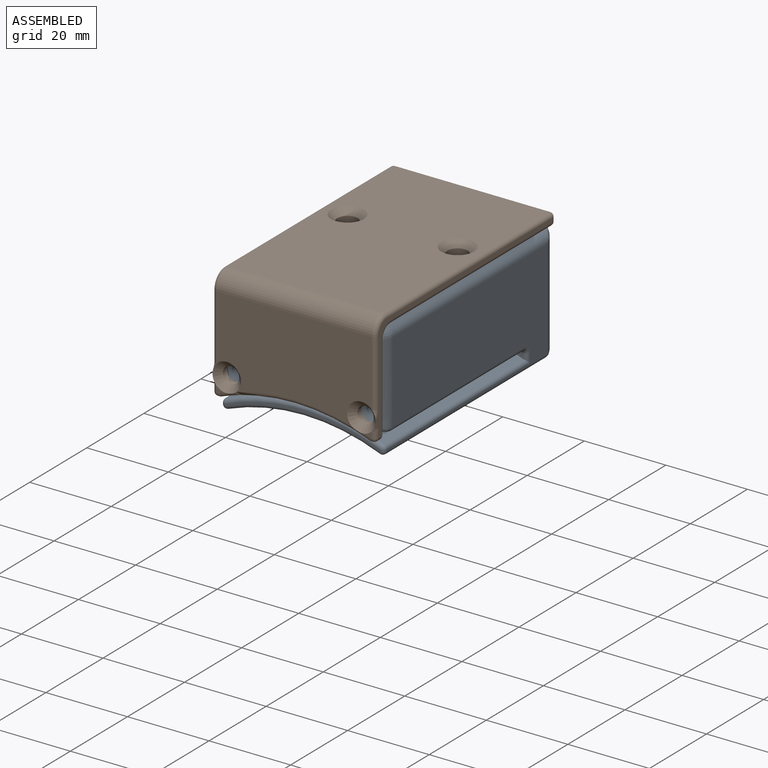
[diagram: assembled view]
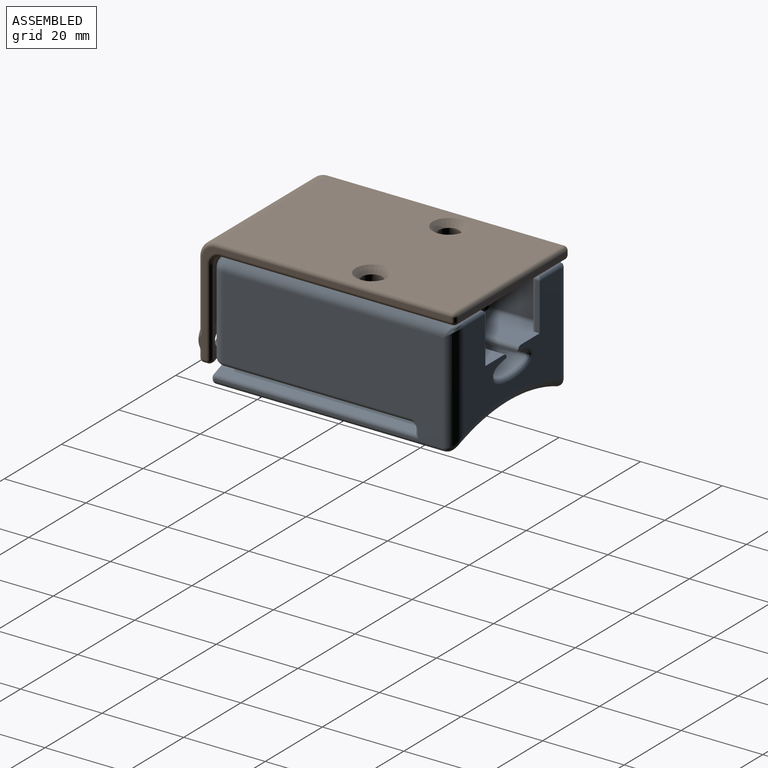
[diagram: assembled view, second angle]
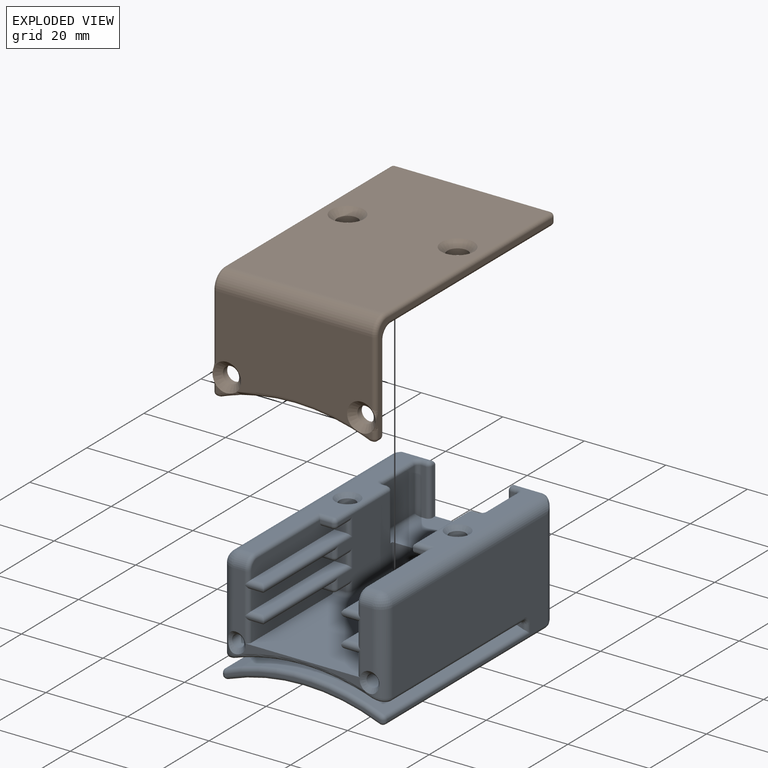
[diagram: exploded view]
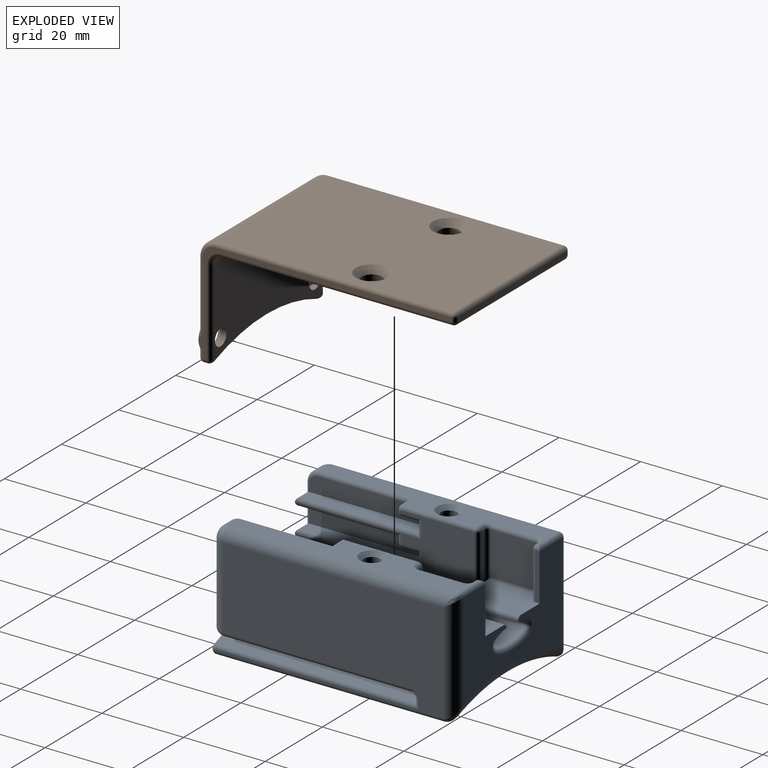
[diagram: exploded view, second angle]
ASSEMBLY  parts=2 mates=3
PART A: 210 faces, bbox 44.8x60.6x29.6 mm
  f0: plane 15.41x2.75mm, normal (0,-1,0), area 39.4mm2, adj f65,f66,f122,f135,f139,f196
  f1: plane 30.46x2.65mm, normal (0,-1,0), area 28.4mm2, adj f43,f98,f196,f197
  f2: plane 0.74x0.29mm, normal (0,-1,0), area 0.1mm2, adj f73,f98,f197
  f3: plane 0.74x0.29mm, normal (0,-1,0), area 0.1mm2, adj f66,f98,f196
  f4: plane 9.5x6.5mm, normal (0,-1,0), area 26mm2, adj f5,f43,f52,f141,f187,f188
  f5: plane 16.37x8.87mm, normal (0,0,1), area 122.3mm2, adj f4,f6,f52,f55,f58,f142,f148,f161
  f6: plane 34x23.63mm, normal (0,1,0), area 451.1mm2, adj f5,f58,f59,f61,f69,f70,f71,f102
  f7: plane 9.5x6.5mm, normal (0,-1,0), area 26mm2, adj f43,f51,f61,f100,f186,f187
  f8: plane 56x6.5mm, normal (0,0,1), area 206.2mm2, adj f65,f68,f102,f105,f108,f112,f114,f123
  f9: plane 56x6.5mm, normal (0,0,1), area 206.2mm2, adj f72,f75,f146,f149,f153,f155,f162,f174
  f10: plane 4x2.75mm, normal (0,0,-1), area 11mm2, adj f15,f34,f124,f130
  f11: plane 4x2.75mm, normal (0,0,-1), area 11mm2, adj f17,f38,f118,f119
  f12: plane 4x2.75mm, normal (0,0,-1), area 11mm2, adj f18,f42,f110,f111
  f13: plane 15.41x2.75mm, normal (0,-1,0), area 39.4mm2, adj f73,f75,f163,f178,f184,f197
  f14: plane 29x2.75mm, normal (0,0,1), area 79.7mm2, adj f15,f34,f134,f137
  f15: plane 2.75x2.5mm, normal (0,-1,0), area 6.9mm2, adj f10,f14,f34,f133
  f16: plane 29x2.75mm, normal (0,0,1), area 79.7mm2, adj f17,f38,f121,f128
  f17: plane 2.75x2.5mm, normal (0,-1,0), area 6.9mm2, adj f11,f16,f38,f120
  f18: plane 2.75x1.5mm, normal (0,-1,0), area 4.1mm2, adj f12,f42,f101,f107
  f19: plane 24x2.75mm, normal (0,0,-1), area 66mm2, adj f20,f42,f121,f128
  f20: plane 2.75x1.5mm, normal (0,-1,0), area 4.1mm2, adj f19,f42,f111,f116
  f21: plane 24x2.75mm, normal (0,0,-1), area 66mm2, adj f22,f38,f134,f137
  f22: plane 2.75x1.5mm, normal (0,-1,0), area 4.1mm2, adj f21,f38,f119,f131
  f23: plane 2.75x0.5mm, normal (0,-1,0), area 1.4mm2, adj f34,f124,f125,f132
  f24: plane 3x2.75mm, normal (0,0,-1), area 8.3mm2, adj f36,f167,f172,f173
  f25: plane 3x2.75mm, normal (0,0,-1), area 8.3mm2, adj f40,f157,f159,f160
  f26: plane 4x2.75mm, normal (0,0,-1), area 11mm2, adj f44,f45,f150,f151
  f27: plane 56x24.5mm, normal (1,0,0), area 1124.7mm2, adj f71,f72,f73,f80,f85,f90,f92,f95
  f28: plane 38x4.17mm, normal (0,-1,0), area 17mm2, adj f81,f82,f85,f86
  f29: plane 56x24.5mm, normal (-1,0,0), area 1124.7mm2, adj f66,f68,f69,f77,f82,f87,f89,f91
  f30: cylinder r=50mm len=56mm, axis (0,1,0), area 2137.8mm2, adj f70,f77,f80,f81
  f31: cylinder r=50mm len=49.08mm, axis (0,-1,0), area 1951.2mm2, adj f33,f86,f87,f89,f90,f92
  f32: cylinder r=50mm len=48mm, axis (0,-1,0), area 1802.3mm2, adj f93,f94,f96,f97,f98,f99,f190,f191
  f33: plane 38x4.75mm, normal (0,-1,0), area 37mm2, adj f31,f89,f92,f93
  f34: plane 29x4mm, normal (1,0,0), area 107.9mm2, adj f10,f14,f15,f23,f124,f136,f138,f139
  f35: plane 29x2.75mm, normal (0,0,1), area 79.7mm2, adj f36,f37,f179,f182
  f36: plane 29x4mm, normal (-1,0,0), area 107.6mm2, adj f24,f35,f37,f50,f167,f173,f181,f183
  f37: plane 2.75x1.5mm, normal (0,-1,0), area 4.1mm2, adj f35,f36,f173,f180
  f38: plane 29x5mm, normal (1,0,0), area 132.7mm2, adj f11,f16,f17,f21,f22,f119,f135
  f39: plane 29x2.75mm, normal (0,0,1), area 79.7mm2, adj f40,f41,f164,f169
  f40: plane 29x5mm, normal (-1,0,0), area 132.3mm2, adj f25,f39,f41,f48,f49,f157,f159,f170
  f41: plane 2.75x1.5mm, normal (0,-1,0), area 4.1mm2, adj f39,f40,f157,f165
  f42: plane 29x5mm, normal (1,0,0), area 132.5mm2, adj f12,f18,f19,f20,f43,f101,f111,f122
  f43: plane 45x28.14mm, normal (0,0,1), area 1042.6mm2, adj f1,f4,f7,f42,f44,f100,f101,f104
  f44: plane 29x5mm, normal (-1,0,0), area 132.5mm2, adj f26,f43,f45,f46,f47,f140,f150,f163
  f45: plane 2.75x1.5mm, normal (0,-1,0), area 4.1mm2, adj f26,f44,f140,f147
  f46: plane 24x2.75mm, normal (0,0,-1), area 66mm2, adj f44,f47,f164,f169
  f47: plane 2.75x1.5mm, normal (0,-1,0), area 4.1mm2, adj f44,f46,f150,f156
  f48: plane 23x2.75mm, normal (0,0,-1), area 63.2mm2, adj f40,f170,f179,f182
  f49: plane 2.75x0.5mm, normal (0,-1,0), area 1.4mm2, adj f40,f159,f170,f171
  f50: plane 3.75x0.5mm, normal (0,-1,0), area 1.9mm2, adj f36,f52,f167,f177
  f51: plane 19x17mm, normal (1,0,0), area 254mm2, adj f7,f61,f100,f107,f110,f115,f116,f118
  f52: plane 21x17mm, normal (-1,0,0), area 257.1mm2, adj f4,f5,f50,f141,f147,f151,f156,f158
  f53: plane 11.5x1mm, normal (0,1,0), area 11.5mm2, adj f61,f109,f114,f115
  f54: plane 11x10.5mm, normal (1,0,0), area 115.5mm2, adj f103,f106,f108,f109
  f55: plane 11.5x1mm, normal (0,1,0), area 11.5mm2, adj f5,f152,f161,f162
  f56: plane 11x10.5mm, normal (-1,0,0), area 115.5mm2, adj f145,f148,f152,f153
  f57: plane 10.5x1mm, normal (0,-1,0), area 10.5mm2, adj f142,f145,f146,f202
  f58: plane 11.5x1.27mm, normal (-1,0,0), area 11.6mm2, adj f5,f6,f200,f202,f204
  f59: plane 11.5x1mm, normal (1,0,0), area 11.5mm2, adj f6,f61,f205,f208
  f60: plane 11.5x1mm, normal (0,-1,0), area 11.5mm2, adj f61,f102,f103,f205
  f61: plane 16x8.5mm, normal (0,0,1), area 123.9mm2, adj f6,f7,f51,f53,f59,f60,f106,f115
  f62: plane 13.97x0.67mm, normal (1,0,0), area 8.4mm2, adj f64,f185,f186,f209
  f63: plane 13.97x0.67mm, normal (-1,0,0), area 8.4mm2, adj f64,f188,f189,f209
  f64: extruded ~13x12mm, area 295.3mm2, adj f62,f63,f187,f209
  f65: cylinder r=3mm len=3mm, axis (1,0,0), area 13mm2, adj f0,f8,f67,f138
  f66: cylinder r=3mm len=20mm, axis (0,0,1), area 86.9mm2, adj f0,f3,f29,f67,f96,f196
  f67: sphere r=3mm, area 14.1mm2, adj f65,f66,f68
  f68: cylinder r=3mm len=56mm, axis (0,-1,0), area 259.2mm2, adj f8,f29,f67,f206
  f69: cylinder r=3mm len=26.5mm, axis (0,0,-1), area 113.4mm2, adj f6,f29,f76,f206
  f70: torus R=53mm, axis (0,-1,0), area 170.4mm2, adj f6,f30,f76,f78
  f71: cylinder r=3mm len=26.5mm, axis (0,0,1), area 113.4mm2, adj f6,f27,f78,f201
  f72: cylinder r=3mm len=56mm, axis (0,1,0), area 259.2mm2, adj f9,f27,f74,f201
  f73: cylinder r=3mm len=20mm, axis (0,0,-1), area 86.9mm2, adj f2,f13,f27,f74,f99,f197
  f74: sphere r=3mm, area 14.1mm2, adj f72,f73,f75
  f75: cylinder r=3mm len=3mm, axis (1,0,0), area 13mm2, adj f9,f13,f74,f183
  f76: bspline ~4.35x3.66mm, area 4.7mm2, adj f69,f70,f77
  f77: cylinder r=1mm len=56mm, axis (0,1,0), area 109.3mm2, adj f29,f30,f76,f79
  f78: bspline ~4.35x3.66mm, area 4.7mm2, adj f70,f71,f80
  f79: sphere r=1mm, area 2mm2, adj f77,f81,f82
  f80: cylinder r=1mm len=56mm, axis (0,1,0), area 109.3mm2, adj f27,f30,f78,f83
  f81: torus R=51mm, axis (0,-1,0), area 60.4mm2, adj f28,f30,f79,f83
  f82: cylinder r=1mm len=1mm, axis (0,0,1), area 0.5mm2, adj f28,f29,f79,f84
  f83: sphere r=1mm, area 2mm2, adj f80,f81,f85
  f84: sphere r=1mm, area 0.8mm2, adj f82,f86,f87
  f85: cylinder r=1mm len=1mm, axis (0,0,-1), area 0.5mm2, adj f27,f28,f83,f88
  f86: torus R=49mm, axis (0,-1,0), area 62.1mm2, adj f28,f31,f84,f88
  f87: cylinder r=1mm len=50mm, axis (0,-1,0), area 58.1mm2, adj f29,f31,f84,f89
  f88: sphere r=1mm, area 1.2mm2, adj f85,f86,f90
  f89: cylinder r=1mm len=2mm, axis (0,0,1), area 2.2mm2, adj f29,f31,f33,f87,f91
  f90: cylinder r=1mm len=50mm, axis (0,-1,0), area 58.1mm2, adj f27,f31,f88,f92
  f91: bspline ~2.7x2.14mm, area 4mm2, adj f29,f89,f93,f94
  f92: cylinder r=1mm len=2mm, axis (0,0,-1), area 2.2mm2, adj f27,f31,f33,f90,f95
  f93: torus R=49mm, axis (0,-1,0), area 60.8mm2, adj f32,f33,f91,f95
  f94: cylinder r=1mm len=46mm, axis (0,-1,0), area 89.8mm2, adj f29,f32,f91,f96
  f95: bspline ~2.42x2.41mm, area 4mm2, adj f27,f92,f93,f97
  f96: bspline ~3.98x3.78mm, area 7.8mm2, adj f32,f66,f94,f98
  f97: cylinder r=1mm len=46mm, axis (0,-1,0), area 89.8mm2, adj f27,f32,f95,f99
  f98: torus R=51mm, axis (0,-1,0), area 53.7mm2, adj f1,f2,f3,f32,f96,f99,f196,f197
  f99: bspline ~3.98x3.79mm, area 7.8mm2, adj f32,f73,f97,f98
  f100: cylinder r=1mm len=14mm, axis (0,-1,0), area 22mm2, adj f7,f43,f51,f104
  f101: cylinder r=1mm len=2.75mm, axis (1,0,0), area 4.3mm2, adj f18,f42,f43,f104
  f102: cylinder r=1mm len=7.5mm, axis (1,0,0), area 12.6mm2, adj f6,f8,f60,f105,f206,f207,f208
  f103: cylinder r=1mm len=11.5mm, axis (0,0,1), area 17.3mm2, adj f54,f60,f105,f106
  f104: torus R=2mm, axis (0,0,-1), area 3.4mm2, adj f43,f100,f101,f107
  f105: torus R=2mm, axis (0,0,1), area 3.4mm2, adj f8,f102,f103,f108
  f106: cylinder r=1mm len=13mm, axis (0,-1,0), area 18.8mm2, adj f54,f61,f103,f109
  f107: cylinder r=1mm len=2.5mm, axis (0,0,1), area 3.1mm2, adj f18,f51,f104,f110
  f108: cylinder r=1mm len=11mm, axis (0,1,0), area 17.3mm2, adj f8,f54,f105,f112
  f109: cylinder r=1mm len=11.5mm, axis (0,0,-1), area 17.3mm2, adj f53,f54,f106,f112
  f110: cylinder r=1mm len=5mm, axis (0,-1,0), area 7.1mm2, adj f12,f51,f107,f113
  f111: cylinder r=1mm len=2.75mm, axis (-1,0,0), area 4.3mm2, adj f12,f20,f42,f113
  f112: torus R=2mm, axis (0,0,1), area 3.4mm2, adj f8,f108,f109,f114
  f113: sphere r=1mm, area 2.1mm2, adj f110,f111,f116
  f114: cylinder r=1mm len=1mm, axis (-1,0,0), area 1.6mm2, adj f8,f53,f112,f117
  f115: cylinder r=1mm len=11.5mm, axis (0,0,-1), area 18.1mm2, adj f51,f53,f61,f117
  f116: cylinder r=1mm len=2.5mm, axis (0,0,1), area 3.1mm2, adj f20,f51,f113,f121
  f117: sphere r=1mm, area 1mm2, adj f114,f115,f123
  f118: cylinder r=1mm len=5mm, axis (0,-1,0), area 7.1mm2, adj f11,f51,f120,f127
  f119: cylinder r=1mm len=2.75mm, axis (-1,0,0), area 4.3mm2, adj f11,f22,f38,f127
  f120: cylinder r=1mm len=4.5mm, axis (0,0,1), area 5.5mm2, adj f17,f51,f118,f121
  f121: cylinder r=1mm len=31mm, axis (0,-1,0), area 86.8mm2, adj f16,f19,f51,f116,f120,f128
  f122: cylinder r=1mm len=6mm, axis (0,0,1), area 8.6mm2, adj f0,f42,f43,f128,f196
  f123: cylinder r=1mm len=18mm, axis (0,-1,0), area 28.3mm2, adj f8,f51,f117,f129
  f124: cylinder r=1mm len=2.75mm, axis (-1,0,0), area 4.3mm2, adj f10,f23,f34,f126
  f125: cylinder r=1mm len=1mm, axis (0,0,1), area 0.8mm2, adj f23,f51,f126,f129
  f126: sphere r=1mm, area 1.6mm2, adj f124,f125,f130
  f127: sphere r=1mm, area 1.6mm2, adj f118,f119,f131
  f128: cylinder r=1mm len=4.75mm, axis (1,0,0), area 12.2mm2, adj f16,f19,f121,f122,f135
  f129: sphere r=1mm, area 1.6mm2, adj f123,f125,f132
  f130: cylinder r=1mm len=5mm, axis (0,-1,0), area 7.1mm2, adj f10,f51,f126,f133
  f131: cylinder r=1mm len=2.5mm, axis (0,0,1), area 3.1mm2, adj f22,f51,f127,f134
  f132: cylinder r=1mm len=3.75mm, axis (1,0,0), area 5.1mm2, adj f8,f23,f129,f136
  f133: cylinder r=1mm len=4.5mm, axis (0,0,1), area 5.5mm2, adj f15,f51,f130,f134
  f134: cylinder r=1mm len=31mm, axis (0,-1,0), area 86.8mm2, adj f14,f21,f51,f131,f133,f137
  f135: cylinder r=1mm len=7mm, axis (0,0,1), area 9.4mm2, adj f0,f38,f128,f137
  f136: cylinder r=1mm len=23mm, axis (0,1,0), area 35.3mm2, adj f8,f34,f132,f138
  f137: cylinder r=1mm len=4.75mm, axis (1,0,0), area 12.2mm2, adj f14,f21,f134,f135,f139
  f138: torus R=2mm, axis (-1,0,0), area 6.5mm2, adj f34,f65,f136,f139
  f139: cylinder r=1mm len=3mm, axis (0,0,1), area 3.9mm2, adj f0,f34,f137,f138
  f140: cylinder r=1mm len=2.75mm, axis (1,0,0), area 4.3mm2, adj f43,f44,f45,f143
  f141: cylinder r=1mm len=14mm, axis (0,1,0), area 22mm2, adj f4,f43,f52,f143
  f142: cylinder r=1mm len=1mm, axis (-1,0,0), area 1.6mm2, adj f5,f57,f144,f200
  f143: torus R=2mm, axis (0,0,-1), area 3.4mm2, adj f43,f140,f141,f147
  f144: sphere r=1mm, area 1mm2, adj f142,f145,f148
  f145: cylinder r=1mm len=10.5mm, axis (0,0,-1), area 16.5mm2, adj f56,f57,f144,f149
  f146: cylinder r=1mm len=7.5mm, axis (1,0,0), area 12.6mm2, adj f6,f9,f57,f149,f201,f203,f204
  f147: cylinder r=1mm len=2.5mm, axis (0,0,-1), area 3.1mm2, adj f45,f52,f143,f151
  f148: cylinder r=1mm len=12mm, axis (0,1,0), area 18.1mm2, adj f5,f56,f144,f152
  f149: torus R=2mm, axis (0,0,1), area 3.4mm2, adj f9,f145,f146,f153
  f150: cylinder r=1mm len=2.75mm, axis (-1,0,0), area 4.3mm2, adj f26,f44,f47,f154
  f151: cylinder r=1mm len=5mm, axis (0,1,0), area 7.1mm2, adj f26,f52,f147,f154
  f152: cylinder r=1mm len=11.5mm, axis (0,0,1), area 17.3mm2, adj f55,f56,f148,f155
  f153: cylinder r=1mm len=11mm, axis (0,-1,0), area 17.3mm2, adj f9,f56,f149,f155
  f154: sphere r=1mm, area 1.6mm2, adj f150,f151,f156
  f155: torus R=2mm, axis (0,0,1), area 3.4mm2, adj f9,f152,f153,f162
  f156: cylinder r=1mm len=2.5mm, axis (0,0,-1), area 3.1mm2, adj f47,f52,f154,f164
  f157: cylinder r=1mm len=2.75mm, axis (-1,0,0), area 4.3mm2, adj f25,f40,f41,f158
  f158: torus R=2mm, axis (1,0,0), area 3.4mm2, adj f52,f157,f160,f165
  f159: cylinder r=1mm len=2.75mm, axis (-1,0,0), area 4.3mm2, adj f25,f40,f49,f166
  f160: cylinder r=1mm len=3mm, axis (0,1,0), area 4.7mm2, adj f25,f52,f158,f166
  f161: cylinder r=1mm len=11.5mm, axis (0,0,1), area 18.1mm2, adj f5,f52,f55,f168
  f162: cylinder r=1mm len=1mm, axis (-1,0,0), area 1.6mm2, adj f9,f55,f155,f168
  f163: cylinder r=1mm len=6mm, axis (0,0,-1), area 8.6mm2, adj f13,f43,f44,f169,f197
  f164: cylinder r=1mm len=31mm, axis (0,1,0), area 86.8mm2, adj f39,f46,f52,f156,f165,f169
  f165: cylinder r=1mm len=2.5mm, axis (0,0,-1), area 3.1mm2, adj f41,f52,f158,f164
  f166: sphere r=1mm, area 1.6mm2, adj f159,f160,f171
  f167: cylinder r=1mm len=3.75mm, axis (-1,0,0), area 5.1mm2, adj f24,f36,f50,f172
  f168: sphere r=1mm, area 2.1mm2, adj f161,f162,f174
  f169: cylinder r=1mm len=4.75mm, axis (1,0,0), area 12.2mm2, adj f39,f46,f163,f164,f178
  f170: cylinder r=1mm len=2.75mm, axis (-1,0,0), area 4.3mm2, adj f40,f48,f49,f175
  f171: cylinder r=1mm len=1mm, axis (0,0,-1), area 0.8mm2, adj f49,f52,f166,f175
  f172: cylinder r=1mm len=4mm, axis (0,1,0), area 5.5mm2, adj f24,f52,f167,f176
  f173: cylinder r=1mm len=2.75mm, axis (-1,0,0), area 4.3mm2, adj f24,f36,f37,f176
  f174: cylinder r=1mm len=19mm, axis (0,1,0), area 29.1mm2, adj f9,f52,f168,f177
  f175: torus R=2mm, axis (1,0,0), area 3.4mm2, adj f52,f170,f171,f179
  f176: torus R=2mm, axis (1,0,0), area 3.4mm2, adj f52,f172,f173,f180
  f177: cylinder r=1mm len=4.75mm, axis (1,0,0), area 5.9mm2, adj f9,f50,f174,f181
  f178: cylinder r=1mm len=7mm, axis (0,0,-1), area 9.4mm2, adj f13,f40,f169,f182
  f179: cylinder r=1mm len=31mm, axis (0,1,0), area 84.5mm2, adj f35,f48,f52,f175,f180,f182
  f180: cylinder r=1mm len=2.5mm, axis (0,0,-1), area 3.1mm2, adj f37,f52,f176,f179
  f181: cylinder r=1mm len=23mm, axis (0,-1,0), area 35.3mm2, adj f9,f36,f177,f183
  f182: cylinder r=1mm len=4.75mm, axis (1,0,0), area 12.2mm2, adj f35,f48,f178,f179,f184
  f183: torus R=2mm, axis (-1,0,0), area 6.5mm2, adj f36,f75,f181,f184
  f184: cylinder r=1mm len=3mm, axis (0,0,-1), area 3.9mm2, adj f13,f36,f182,f183
  f185: cylinder r=1mm len=15mm, axis (0,-1,0), area 23mm2, adj f6,f61,f62,f186,f209
  f186: cylinder r=1mm len=1.61mm, axis (0,0,1), area 1.1mm2, adj f7,f62,f185,f187
  f187: bspline ~14.01x6mm, area 37.8mm2, adj f4,f7,f64,f186,f188
  f188: cylinder r=1mm len=1.61mm, axis (0,0,-1), area 1.1mm2, adj f4,f63,f187,f189
  f189: cylinder r=1mm len=15mm, axis (0,-1,0), area 23mm2, adj f5,f6,f63,f188,f209
  f190: cylinder r=2mm len=20.67mm, axis (0,0,1), area 259.7mm2, adj f32,f199
  f191: cylinder r=2mm len=21.79mm, axis (0,0,1), area 273.8mm2, adj f32,f198
  f192: cylinder r=1.5mm len=29mm, axis (0,-1,0), area 273.3mm2, adj f193,f197
  f193: plane 3x3mm, normal (0,-1,0), area 7.1mm2, adj f192
  f194: cylinder r=1.5mm len=29mm, axis (0,-1,0), area 273.3mm2, adj f195,f196
  f195: plane 3x3mm, normal (0,-1,0), area 7.1mm2, adj f194
  f196: cone r=1.5mm half-angle=45deg, axis (0,-1,0), area 15.6mm2, adj f0,f1,f3,f43,f66,f98,f122,f194
  f197: cone r=1.5mm half-angle=45deg, axis (0,-1,0), area 15.6mm2, adj f1,f2,f13,f43,f73,f98,f163,f192
  f198: cone r=2mm half-angle=45deg, axis (0,0,1), area 22.2mm2, adj f9,f191
  f199: cone r=2mm half-angle=45deg, axis (0,0,1), area 22.2mm2, adj f8,f190
  f200: torus R=2mm, axis (-1,0,0), area 2.1mm2, adj f5,f58,f142,f202
  f201: bspline ~3.13x3mm, area 3.2mm2, adj f71,f72,f146
  f202: cylinder r=1mm len=10.5mm, axis (0,0,1), area 16.5mm2, adj f57,f58,f200,f203
  f203: sphere r=1mm, area 1.6mm2, adj f146,f202,f204
  f204: cylinder r=1mm len=1mm, axis (0,-1,0), area 0.8mm2, adj f58,f146,f203
  f205: cylinder r=1mm len=11.5mm, axis (0,0,1), area 18.1mm2, adj f59,f60,f61,f207
  f206: bspline ~3.13x3mm, area 3.2mm2, adj f68,f69,f102
  f207: sphere r=1mm, area 1.6mm2, adj f102,f205,f208
  f208: cylinder r=1mm len=1mm, axis (0,1,0), area 0.8mm2, adj f59,f102,f207
  f209: bspline ~14.01x6mm, area 39.3mm2, adj f6,f62,f63,f64,f185,f189
PART B: 66 faces, bbox 40.9x63.5x28 mm
  f0: plane 1.91x1.55mm, normal (0,-1,0), area 1.3mm2, adj f6,f26,f34,f58
  f1: plane 38x20.96mm, normal (0,-1,0), area 696.7mm2, adj f16,f25,f26,f29,f44,f58
  f2: plane 1.91x1.55mm, normal (0,-1,0), area 1.3mm2, adj f3,f25,f49,f58
  f3: cylinder r=1mm len=1mm, axis (-1,0,0), area 0.7mm2, adj f2,f7,f51,f59
  f4: plane 1x0.43mm, normal (0,0,-1), area 0.4mm2, adj f6,f8,f38,f62
  f5: cylinder r=1mm len=1mm, axis (-1,0,0), area 0.7mm2, adj f7,f9,f55,f63
  f6: cylinder r=1mm len=1mm, axis (-1,0,0), area 0.7mm2, adj f0,f4,f36,f60
  f7: plane 1x0.43mm, normal (0,0,-1), area 0.4mm2, adj f3,f5,f53,f61
  f8: cylinder r=1mm len=1mm, axis (-1,0,0), area 0.7mm2, adj f4,f9,f40,f64
  f9: plane 38x21mm, normal (0,1,0), area 685.6mm2, adj f5,f8,f10,f21,f22,f42,f57,f65
  f10: cylinder r=2.5mm len=38mm, axis (-1,0,0), area 149.2mm2, adj f9,f11,f41,f56
  f11: plane 56.5x38mm, normal (0,0,-1), area 2107.7mm2, adj f10,f12,f19,f20,f39,f54
  f12: cylinder r=1mm len=38mm, axis (-1,0,0), area 59.7mm2, adj f11,f13,f37,f52
  f13: plane 38x1mm, normal (0,1,0), area 38mm2, adj f12,f14,f35,f50
  f14: cylinder r=1mm len=38mm, axis (-1,0,0), area 59.7mm2, adj f13,f15,f33,f48
  f15: plane 58x38mm, normal (0,0,1), area 2103.5mm2, adj f14,f16,f23,f24,f31,f46
  f16: cylinder r=4mm len=38mm, axis (-1,0,0), area 238.8mm2, adj f1,f15,f30,f45
  f17: plane 62.13x25.63mm, normal (1,0,0), area 88mm2, adj f43,f44,f45,f46,f47,f49,f50,f53
  f18: plane 62.13x25.63mm, normal (-1,0,0), area 88mm2, adj f28,f29,f30,f31,f32,f34,f35,f38
  f19: cylinder r=2.5mm len=5mm, axis (0,0,1), area 23.6mm2, adj f11,f24
  f20: cylinder r=2.5mm len=5mm, axis (0,0,1), area 23.6mm2, adj f11,f23
  f21: cylinder r=2mm len=4mm, axis (0,1,0), area 18.8mm2, adj f9,f26
  f22: cylinder r=2mm len=4mm, axis (0,1,0), area 18.8mm2, adj f9,f25
  f23: cone r=2.5mm half-angle=45deg, axis (0,0,1), area 43.3mm2, adj f15,f20
  f24: cone r=2.5mm half-angle=45deg, axis (0,0,1), area 43.3mm2, adj f15,f19
  f25: cone r=3.5mm half-angle=45deg, axis (0,-1,0), area 36.7mm2, adj f1,f2,f22,f43,f47,f58
  f26: cone r=3.5mm half-angle=45deg, axis (0,-1,0), area 36.7mm2, adj f0,f1,f21,f28,f32,f58
  f27: cylinder r=50mm len=36.41mm, axis (0,-1,0), area 37.3mm2, adj f58,f61,f62,f65
  f28: bspline ~2.56x1.07mm, area 1.7mm2, adj f18,f26,f29
  f29: cylinder r=1mm len=16.05mm, axis (0,0,-1), area 25.2mm2, adj f1,f18,f28,f30
  f30: torus R=3mm, axis (1,0,0), area 9mm2, adj f16,f18,f29,f31
  f31: cylinder r=1mm len=58mm, axis (0,-1,0), area 91.1mm2, adj f15,f18,f30,f33
  f32: bspline ~2.56x1.07mm, area 1.7mm2, adj f18,f26,f34
  f33: sphere r=1mm, area 1.6mm2, adj f14,f31,f35
  f34: cylinder r=1mm len=1.55mm, axis (0,0,-1), area 2.4mm2, adj f0,f18,f32,f36
  f35: cylinder r=1mm len=1mm, axis (0,0,1), area 1.6mm2, adj f13,f18,f33,f37
  f36: sphere r=1mm, area 1.6mm2, adj f6,f34,f38
  f37: sphere r=1mm, area 1.6mm2, adj f12,f35,f39
  f38: cylinder r=1mm len=1mm, axis (0,1,0), area 1.6mm2, adj f4,f18,f36,f40
  f39: cylinder r=1mm len=56.5mm, axis (0,1,0), area 88.7mm2, adj f11,f18,f37,f41
  f40: sphere r=1mm, area 1.6mm2, adj f8,f38,f42
  f41: torus R=3.5mm, axis (1,0,0), area 7.1mm2, adj f10,f18,f39,f42
  f42: cylinder r=1mm len=21mm, axis (0,0,1), area 33mm2, adj f9,f18,f40,f41
  f43: bspline ~2.56x1.07mm, area 1.7mm2, adj f17,f25,f44
  f44: cylinder r=1mm len=16.05mm, axis (0,0,1), area 25.2mm2, adj f1,f17,f43,f45
  f45: torus R=3mm, axis (1,0,0), area 9mm2, adj f16,f17,f44,f46
  f46: cylinder r=1mm len=58mm, axis (0,1,0), area 91.1mm2, adj f15,f17,f45,f48
  f47: bspline ~2.56x1.07mm, area 1.7mm2, adj f17,f25,f49
  f48: sphere r=1mm, area 1.6mm2, adj f14,f46,f50
  f49: cylinder r=1mm len=1.55mm, axis (0,0,1), area 2.4mm2, adj f2,f17,f47,f51
  f50: cylinder r=1mm len=1mm, axis (0,0,-1), area 1.6mm2, adj f13,f17,f48,f52
  f51: sphere r=1mm, area 1.6mm2, adj f3,f49,f53
  f52: sphere r=1mm, area 1.6mm2, adj f12,f50,f54
  f53: cylinder r=1mm len=1mm, axis (0,-1,0), area 1.6mm2, adj f7,f17,f51,f55
  f54: cylinder r=1mm len=56.5mm, axis (0,-1,0), area 88.7mm2, adj f11,f17,f52,f56
  f55: sphere r=1mm, area 1.6mm2, adj f5,f53,f57
  f56: torus R=3.5mm, axis (1,0,0), area 7.1mm2, adj f10,f17,f54,f57
  f57: cylinder r=1mm len=21mm, axis (0,0,-1), area 33mm2, adj f9,f17,f55,f56
  f58: torus R=51mm, axis (0,1,0), area 57.3mm2, adj f0,f1,f2,f25,f26,f27,f59,f60
  f59: sphere r=1mm, area 0.4mm2, adj f3,f58,f61
  f60: sphere r=1mm, area 0.4mm2, adj f6,f58,f62
  f61: cylinder r=1mm len=1mm, axis (0,-1,0), area 0.4mm2, adj f7,f27,f59,f63
  f62: cylinder r=1mm len=1mm, axis (0,-1,0), area 0.4mm2, adj f4,f27,f60,f64
  f63: sphere r=1mm, area 0.4mm2, adj f5,f61,f65
  f64: sphere r=1mm, area 0.4mm2, adj f8,f62,f65
  f65: torus R=51mm, axis (0,-1,0), area 59mm2, adj f9,f27,f63,f64
PLACE A t=(-13.34,43.29,72.55)mm
PLACE B t=(-33.34,33.29,37.05)mm
MATE cylindrical B.f23 <-> A.f190  axis (0,0,1) through (-26.84,18.29,87.8)mm
MATE cylindrical B.f24 <-> A.f191  axis (0,0,-1) through (0.16,18.29,88.55)mm
MATE cylindrical B.f21 <-> A.f194  axis (0,-1,0) through (-29.84,-18.96,67.55)mm
